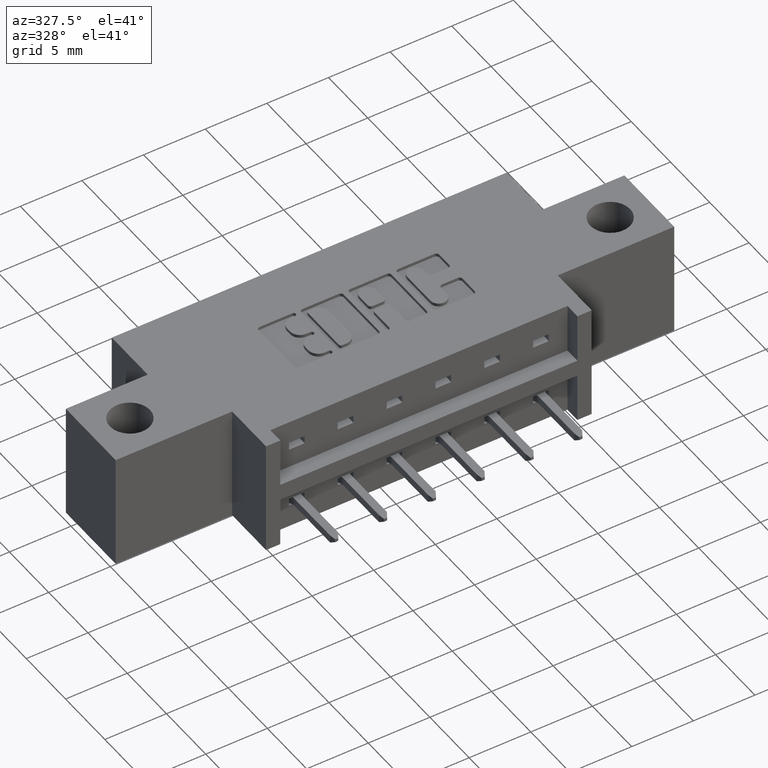
[diagram: clean part render]
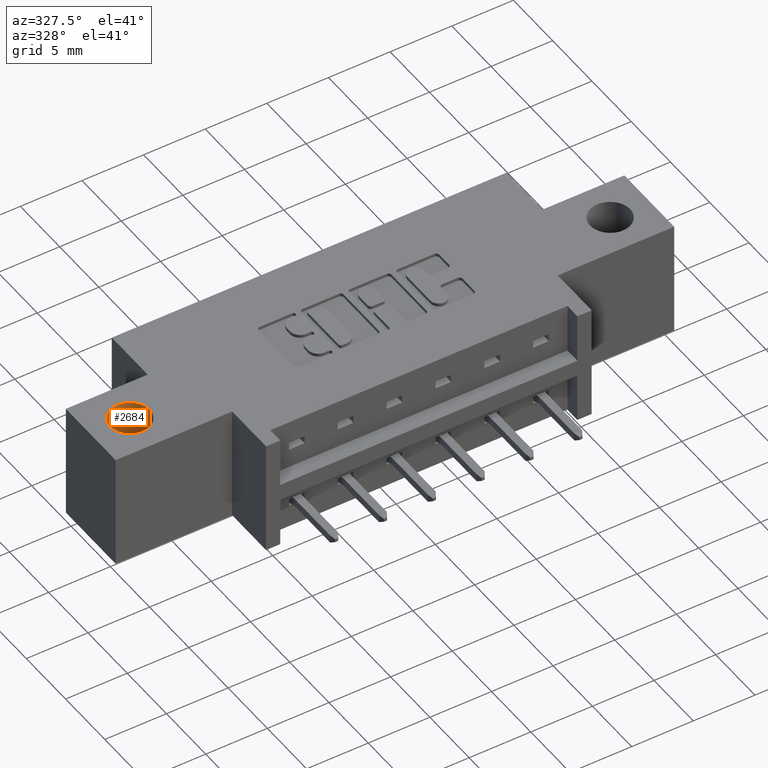
[diagram: same view with one face highlighted and labeled with its STEP entity id]
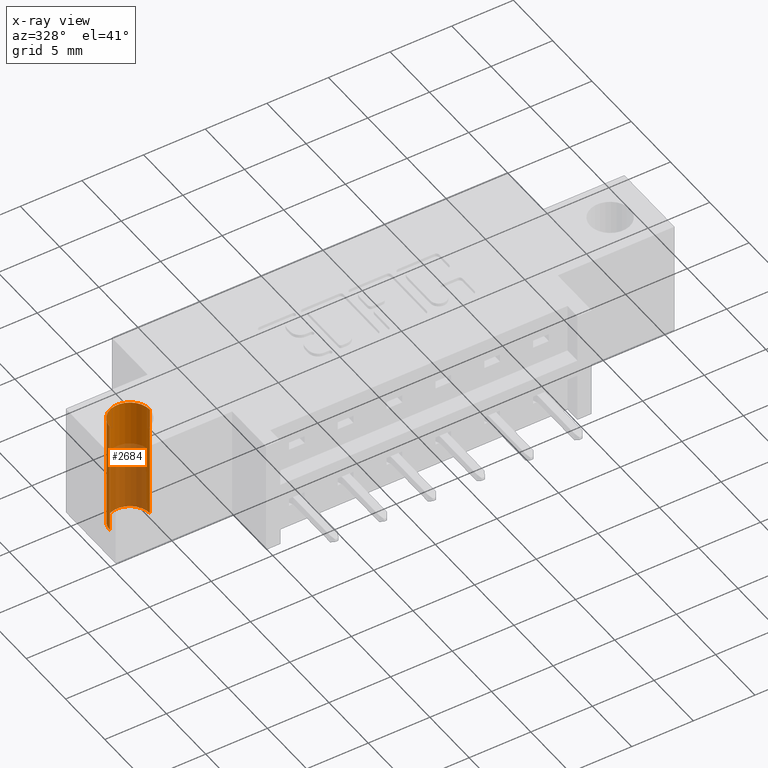
[diagram: x-ray of the same camera — body ghosted, the highlighted face saturated]
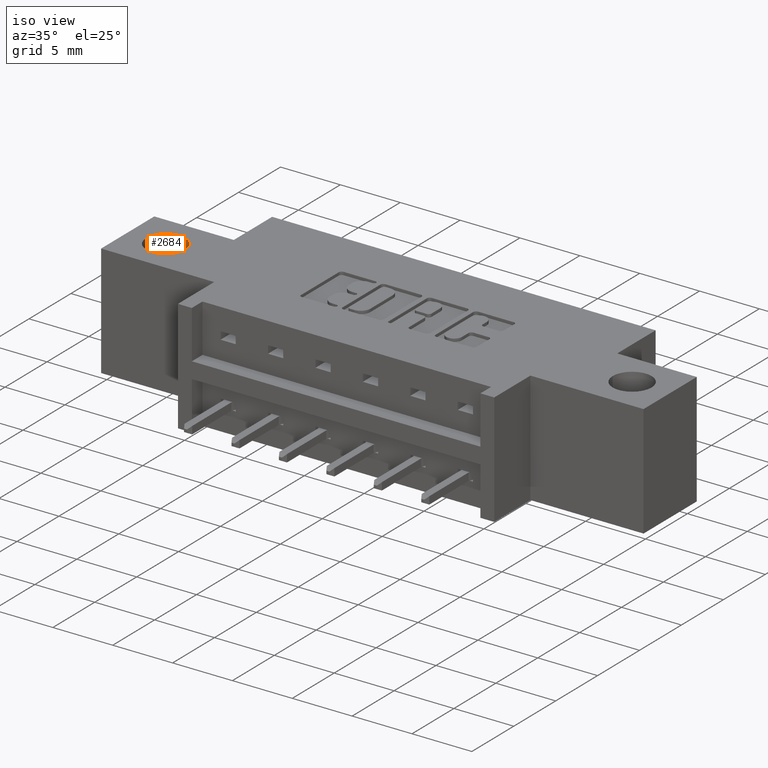
[diagram: same view with one face highlighted and labeled with its STEP entity id]
A machine part, auxiliary view. The second image highlights one B-rep face of the part: STEP entity #2684.
The next image is the same camera in x-ray: the body ghosted, the highlighted face saturated — about 50% of this face is hidden behind the body in this view.
A second angle (iso view) of the same face is appended — the face is thin or edge-on in the first view.
In plain terms, the highlighted cylindrical surface (edge-blend (fillet) strip) has radius 1.6256 mm, axis along (0, 0, 1).
Its self-contained STEP definition (entity closure, byte-faithful):
#18 = VECTOR ( 'NONE', #1397, 39.37007874015748100 ) ;
#83 = VERTEX_POINT ( 'NONE', #343 ) ;
#273 = EDGE_CURVE ( 'NONE', #83, #5969, #4022, .T. ) ;
#343 = CARTESIAN_POINT ( 'NONE',  ( 0.1889999999999998100, 0.2949999999999999800, -0.3700000000000001600 ) ) ;
#449 = VERTEX_POINT ( 'NONE', #7503 ) ;
#730 = CYLINDRICAL_SURFACE ( 'NONE', #6495, 0.06400000000000000100 ) ;
#958 = LINE ( 'NONE', #3187, #2778 ) ;
#1397 = DIRECTION ( 'NONE',  ( -0.0000000000000000000, -0.0000000000000000000, 1.000000000000000000 ) ) ;
#2112 = CARTESIAN_POINT ( 'NONE',  ( 0.06099999999999979700, 0.2949999999999999800, 0.0000000000000000000 ) ) ;
#2684 = ADVANCED_FACE ( 'NONE', ( #6036 ), #730, .F. ) ;
#2778 = VECTOR ( 'NONE', #3175, 39.37007874015748100 ) ;
#2891 = ORIENTED_EDGE ( 'NONE', *, *, #273, .F. ) ;
#3164 = DIRECTION ( 'NONE',  ( -0.0000000000000000000, -0.0000000000000000000, 1.000000000000000000 ) ) ;
#3175 = DIRECTION ( 'NONE',  ( -0.0000000000000000000, -0.0000000000000000000, 1.000000000000000000 ) ) ;
#3187 = CARTESIAN_POINT ( 'NONE',  ( 0.1889999999999998100, 0.2949999999999999800, -0.3700000000000001600 ) ) ;
#3438 = EDGE_CURVE ( 'NONE', #5969, #8482, #3894, .T. ) ;
#3724 = ORIENTED_EDGE ( 'NONE', *, *, #7458, .T. ) ;
#3894 = LINE ( 'NONE', #4681, #18 ) ;
#4022 = CIRCLE ( 'NONE', #8477, 0.06400000000000000100 ) ;
#4681 = CARTESIAN_POINT ( 'NONE',  ( 0.06099999999999979700, 0.2949999999999999800, -0.3700000000000001600 ) ) ;
#5039 = EDGE_CURVE ( 'NONE', #449, #8482, #6577, .T. ) ;
#5075 = ORIENTED_EDGE ( 'NONE', *, *, #5039, .T. ) ;
#5106 = DIRECTION ( 'NONE',  ( 1.000000000000000000, 0.0000000000000000000, 0.0000000000000000000 ) ) ;
#5375 = DIRECTION ( 'NONE',  ( 0.0000000000000000000, 0.0000000000000000000, 1.000000000000000000 ) ) ;
#5415 = CARTESIAN_POINT ( 'NONE',  ( 0.1249999999999998100, 0.2949999999999999800, 0.0000000000000000000 ) ) ;
#5634 = DIRECTION ( 'NONE',  ( 0.0000000000000000000, 0.0000000000000000000, 1.000000000000000000 ) ) ;
#5851 = CARTESIAN_POINT ( 'NONE',  ( 0.1249999999999998100, 0.2949999999999999800, -0.3700000000000001600 ) ) ;
#5969 = VERTEX_POINT ( 'NONE', #6729 ) ;
#6036 = FACE_OUTER_BOUND ( 'NONE', #7720, .T. ) ;
#6242 = DIRECTION ( 'NONE',  ( 1.000000000000000000, 0.0000000000000000000, 0.0000000000000000000 ) ) ;
#6495 = AXIS2_PLACEMENT_3D ( 'NONE', #7252, #3164, #6242 ) ;
#6577 = CIRCLE ( 'NONE', #6667, 0.06400000000000000100 ) ;
#6588 = DIRECTION ( 'NONE',  ( 1.000000000000000000, 0.0000000000000000000, 0.0000000000000000000 ) ) ;
#6667 = AXIS2_PLACEMENT_3D ( 'NONE', #5415, #5375, #6588 ) ;
#6729 = CARTESIAN_POINT ( 'NONE',  ( 0.06099999999999979700, 0.2949999999999999800, -0.3700000000000001600 ) ) ;
#7252 = CARTESIAN_POINT ( 'NONE',  ( 0.1249999999999998100, 0.2949999999999999800, -0.3700000000000001600 ) ) ;
#7427 = ORIENTED_EDGE ( 'NONE', *, *, #3438, .F. ) ;
#7458 = EDGE_CURVE ( 'NONE', #83, #449, #958, .T. ) ;
#7503 = CARTESIAN_POINT ( 'NONE',  ( 0.1889999999999998100, 0.2949999999999999800, 0.0000000000000000000 ) ) ;
#7720 = EDGE_LOOP ( 'NONE', ( #7427, #2891, #3724, #5075 ) ) ;
#8477 = AXIS2_PLACEMENT_3D ( 'NONE', #5851, #5634, #5106 ) ;
#8482 = VERTEX_POINT ( 'NONE', #2112 ) ;